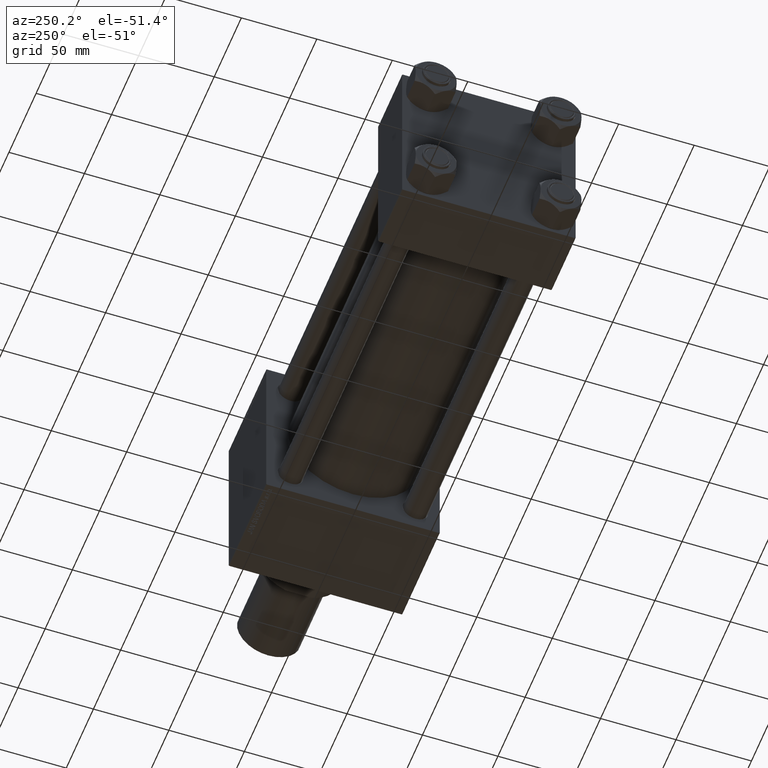
[diagram: clean part render]
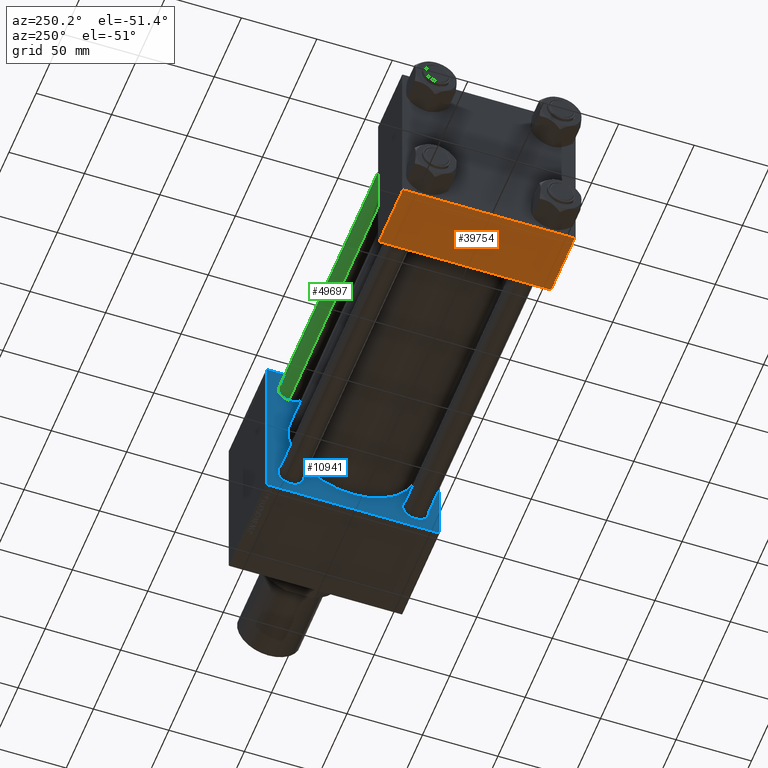
[diagram: same view with three faces highlighted in distinct colors, each labeled with its STEP entity id]
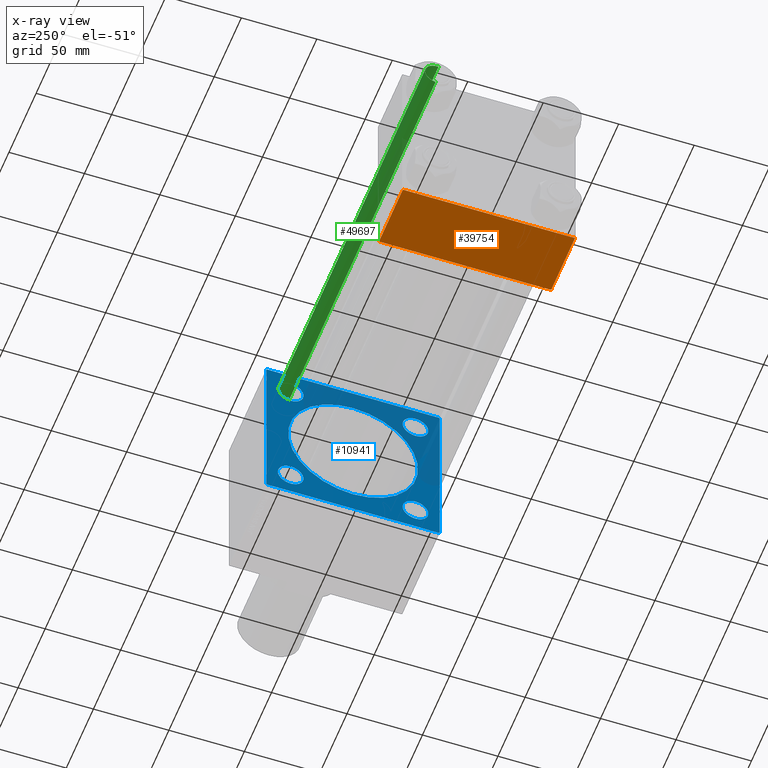
[diagram: x-ray of the same camera — body ghosted, the three highlighted faces saturated]
A machine part, auxiliary view with three faces highlighted in distinct colors.
The next image is the same camera in x-ray (body ghosted, the three faces saturated) — at least one of them is partly hidden behind the body in this view.
Their STEP definitions:

[orange] entity #39754 — the highlighted planar face has unit normal (0, 0, -1).
#2098 = VECTOR ( 'NONE', #50727, 1000.000000000000000 ) ;
#3280 = CARTESIAN_POINT ( 'NONE',  ( 0.000000000000000000, 57.49999999999999289, -57.49999999999999289 ) ) ;
#3710 = VERTEX_POINT ( 'NONE', #31891 ) ;
#6018 = DIRECTION ( 'NONE',  ( 0.000000000000000000, 1.000000000000000000, 1.206764157201257045E-16 ) ) ;
#9402 = CARTESIAN_POINT ( 'NONE',  ( 0.000000000000000000, -57.00000000000000711, -57.50000000000000711 ) ) ;
#10116 = VERTEX_POINT ( 'NONE', #47578 ) ;
#10452 = CARTESIAN_POINT ( 'NONE',  ( 44.00000000000000000, 57.49999999999999289, -57.49999999999999289 ) ) ;
#16551 = VECTOR ( 'NONE', #37942, 1000.000000000000000 ) ;
#16689 = FACE_OUTER_BOUND ( 'NONE', #35744, .T. ) ;
#17630 = LINE ( 'NONE', #46131, #27458 ) ;
#18139 = DIRECTION ( 'NONE',  ( 1.000000000000000000, 0.000000000000000000, 0.000000000000000000 ) ) ;
#18375 = EDGE_CURVE ( 'NONE', #10116, #35563, #45708, .T. ) ;
#19473 = VERTEX_POINT ( 'NONE', #27446 ) ;
#22357 = DIRECTION ( 'NONE',  ( -1.000000000000000000, 0.000000000000000000, 0.000000000000000000 ) ) ;
#27446 = CARTESIAN_POINT ( 'NONE',  ( 0.000000000000000000, 57.00000000000002132, -57.49999999999999289 ) ) ;
#27458 = VECTOR ( 'NONE', #18139, 1000.000000000000000 ) ;
#27668 = ORIENTED_EDGE ( 'NONE', *, *, #18375, .T. ) ;
#28375 = AXIS2_PLACEMENT_3D ( 'NONE', #28624, #44415, #6018 ) ;
#28624 = CARTESIAN_POINT ( 'NONE',  ( 44.00000000000000000, 57.49999999999999289, -57.49999999999999289 ) ) ;
#30224 = EDGE_CURVE ( 'NONE', #35563, #3710, #33017, .T. ) ;
#31730 = VECTOR ( 'NONE', #22357, 1000.000000000000000 ) ;
#31891 = CARTESIAN_POINT ( 'NONE',  ( 0.000000000000000000, -57.00000000000000711, -57.50000000000000711 ) ) ;
#32510 = PLANE ( 'NONE',  #28375 ) ;
#33017 = LINE ( 'NONE', #9402, #31730 ) ;
#35563 = VERTEX_POINT ( 'NONE', #46736 ) ;
#35744 = EDGE_LOOP ( 'NONE', ( #44730, #36134, #27668, #44983 ) ) ;
#36134 = ORIENTED_EDGE ( 'NONE', *, *, #36225, .T. ) ;
#36225 = EDGE_CURVE ( 'NONE', #19473, #10116, #17630, .T. ) ;
#37942 = DIRECTION ( 'NONE',  ( 0.000000000000000000, -1.000000000000000000, -1.206764157201257045E-16 ) ) ;
#38822 = LINE ( 'NONE', #3280, #2098 ) ;
#39754 = ADVANCED_FACE ( 'NONE', ( #16689 ), #32510, .T. ) ;
#44415 = DIRECTION ( 'NONE',  ( 0.000000000000000000, 1.206764157201257045E-16, -1.000000000000000000 ) ) ;
#44730 = ORIENTED_EDGE ( 'NONE', *, *, #45313, .F. ) ;
#44983 = ORIENTED_EDGE ( 'NONE', *, *, #30224, .T. ) ;
#45313 = EDGE_CURVE ( 'NONE', #19473, #3710, #38822, .T. ) ;
#45708 = LINE ( 'NONE', #10452, #16551 ) ;
#46131 = CARTESIAN_POINT ( 'NONE',  ( 44.00000000000000000, 57.00000000000002132, -57.49999999999999289 ) ) ;
#46736 = CARTESIAN_POINT ( 'NONE',  ( 44.00000000000000000, -57.00000000000000711, -57.50000000000000711 ) ) ;
#47578 = CARTESIAN_POINT ( 'NONE',  ( 44.00000000000000000, 57.00000000000002132, -57.49999999999999289 ) ) ;
#50727 = DIRECTION ( 'NONE',  ( 0.000000000000000000, -1.000000000000000000, -1.206764157201257045E-16 ) ) ;

[blue] entity #10941 — the highlighted planar face has unit normal (-1, 0, 0).
#145 = VERTEX_POINT ( 'NONE', #35163 ) ;
#237 = DIRECTION ( 'NONE',  ( 0.000000000000000000, 0.000000000000000000, -1.000000000000000000 ) ) ;
#467 = AXIS2_PLACEMENT_3D ( 'NONE', #19579, #35151, #35407 ) ;
#803 = DIRECTION ( 'NONE',  ( 0.000000000000000000, -1.000000000000000000, -1.206764157201257291E-16 ) ) ;
#907 = ORIENTED_EDGE ( 'NONE', *, *, #44522, .T. ) ;
#1393 = EDGE_CURVE ( 'NONE', #9197, #38888, #12001, .T. ) ;
#1489 = VERTEX_POINT ( 'NONE', #20803 ) ;
#1846 = LINE ( 'NONE', #17673, #1873 ) ;
#1873 = VECTOR ( 'NONE', #24960, 1000.000000000000000 ) ;
#2309 = DIRECTION ( 'NONE',  ( 1.000000000000000000, -0.000000000000000000, 0.000000000000000000 ) ) ;
#2735 = VERTEX_POINT ( 'NONE', #47397 ) ;
#3353 = VERTEX_POINT ( 'NONE', #42329 ) ;
#3479 = VECTOR ( 'NONE', #41892, 1000.000000000000114 ) ;
#3722 = EDGE_CURVE ( 'NONE', #1489, #50781, #44529, .T. ) ;
#4226 = EDGE_LOOP ( 'NONE', ( #907, #44579 ) ) ;
#4785 = VERTEX_POINT ( 'NONE', #33879 ) ;
#4809 = CARTESIAN_POINT ( 'NONE',  ( 250.0000000000000000, 41.34999999999999432, -41.35000000000000142 ) ) ;
#4894 = PLANE ( 'NONE',  #18890 ) ;
#5640 = CARTESIAN_POINT ( 'NONE',  ( 250.0000000000000000, 57.50000000000000000, -56.99999999999991473 ) ) ;
#5723 = CARTESIAN_POINT ( 'NONE',  ( 250.0000000000000000, 57.50000000000000000, 57.50000000000000711 ) ) ;
#5742 = ORIENTED_EDGE ( 'NONE', *, *, #48316, .T. ) ;
#6039 = CARTESIAN_POINT ( 'NONE',  ( 250.0000000000000000, -2.602085213965210642E-15, 0.000000000000000000 ) ) ;
#6301 = DIRECTION ( 'NONE',  ( 0.000000000000000000, 0.000000000000000000, -1.000000000000000000 ) ) ;
#7426 = EDGE_LOOP ( 'NONE', ( #17425, #46167 ) ) ;
#8686 = CIRCLE ( 'NONE', #30260, 43.00000000000000000 ) ;
#9197 = VERTEX_POINT ( 'NONE', #43441 ) ;
#9743 = LINE ( 'NONE', #41383, #3479 ) ;
#9775 = VERTEX_POINT ( 'NONE', #13799 ) ;
#10408 = VERTEX_POINT ( 'NONE', #20821 ) ;
#10941 = ADVANCED_FACE ( 'NONE', ( #37256, #21179, #45026, #17550, #33376, #36545 ), #4894, .T. ) ;
#11238 = DIRECTION ( 'NONE',  ( 0.000000000000000000, -0.7071067811865525687, 0.7071067811865425767 ) ) ;
#11537 = ORIENTED_EDGE ( 'NONE', *, *, #3722, .T. ) ;
#11667 = CARTESIAN_POINT ( 'NONE',  ( 250.0000000000000000, -2.602085213965210642E-15, 0.000000000000000000 ) ) ;
#12001 = LINE ( 'NONE', #23682, #14673 ) ;
#12104 = DIRECTION ( 'NONE',  ( 0.000000000000000000, 0.7071067811865474617, -0.7071067811865474617 ) ) ;
#12260 = AXIS2_PLACEMENT_3D ( 'NONE', #12676, #36020, #28246 ) ;
#12351 = DIRECTION ( 'NONE',  ( 0.000000000000000000, 0.000000000000000000, 1.000000000000000000 ) ) ;
#12676 = CARTESIAN_POINT ( 'NONE',  ( 250.0000000000000000, -41.34999999999998721, 41.35000000000000853 ) ) ;
#13212 = DIRECTION ( 'NONE',  ( -1.000000000000000000, 0.000000000000000000, -0.000000000000000000 ) ) ;
#13438 = CIRCLE ( 'NONE', #34989, 8.500000000000007105 ) ;
#13560 = DIRECTION ( 'NONE',  ( 0.000000000000000000, 0.000000000000000000, -1.000000000000000000 ) ) ;
#13646 = EDGE_CURVE ( 'NONE', #32529, #38888, #26010, .T. ) ;
#13799 = CARTESIAN_POINT ( 'NONE',  ( 250.0000000000000000, 41.34999999999999432, 49.85000000000001563 ) ) ;
#14222 = AXIS2_PLACEMENT_3D ( 'NONE', #41728, #2309, #25672 ) ;
#14288 = CIRCLE ( 'NONE', #27562, 8.500000000000007105 ) ;
#14673 = VECTOR ( 'NONE', #11238, 999.9999999999998863 ) ;
#16254 = LINE ( 'NONE', #51250, #29977 ) ;
#16703 = CIRCLE ( 'NONE', #14222, 8.500000000000007105 ) ;
#16820 = VERTEX_POINT ( 'NONE', #48234 ) ;
#17425 = ORIENTED_EDGE ( 'NONE', *, *, #37050, .T. ) ;
#17550 = FACE_BOUND ( 'NONE', #4226, .T. ) ;
#17673 = CARTESIAN_POINT ( 'NONE',  ( 250.0000000000000000, 57.50000000000000000, 57.50000000000000711 ) ) ;
#18545 = CARTESIAN_POINT ( 'NONE',  ( 250.0000000000000000, 57.00000000000000000, 57.50000000000000711 ) ) ;
#18890 = AXIS2_PLACEMENT_3D ( 'NONE', #37060, #13212, #29043 ) ;
#19579 = CARTESIAN_POINT ( 'NONE',  ( 250.0000000000000000, -41.34999999999998721, 41.35000000000000853 ) ) ;
#19930 = DIRECTION ( 'NONE',  ( 1.000000000000000000, -0.000000000000000000, 0.000000000000000000 ) ) ;
#19939 = DIRECTION ( 'NONE',  ( 1.000000000000000000, 0.000000000000000000, 0.000000000000000000 ) ) ;
#20004 = DIRECTION ( 'NONE',  ( 0.000000000000000000, 0.000000000000000000, 1.000000000000000000 ) ) ;
#20369 = EDGE_LOOP ( 'NONE', ( #20822, #34930 ) ) ;
#20375 = DIRECTION ( 'NONE',  ( 1.000000000000000000, -0.000000000000000000, 0.000000000000000000 ) ) ;
#20803 = CARTESIAN_POINT ( 'NONE',  ( 250.0000000000000000, -41.34999999999998721, 32.85000000000000142 ) ) ;
#20821 = CARTESIAN_POINT ( 'NONE',  ( 250.0000000000000000, 56.99999999999994316, -57.49999999999996447 ) ) ;
#20822 = ORIENTED_EDGE ( 'NONE', *, *, #48739, .T. ) ;
#21179 = FACE_BOUND ( 'NONE', #7426, .T. ) ;
#21639 = EDGE_CURVE ( 'NONE', #25100, #4785, #25466, .T. ) ;
#21862 = DIRECTION ( 'NONE',  ( 1.000000000000000000, 0.000000000000000000, 0.000000000000000000 ) ) ;
#22149 = ORIENTED_EDGE ( 'NONE', *, *, #38703, .T. ) ;
#22701 = EDGE_CURVE ( 'NONE', #23893, #9775, #16703, .T. ) ;
#23316 = CARTESIAN_POINT ( 'NONE',  ( 250.0000000000000000, -57.49999999999999289, -56.99999999999997868 ) ) ;
#23499 = VERTEX_POINT ( 'NONE', #45873 ) ;
#23682 = CARTESIAN_POINT ( 'NONE',  ( 250.0000000000000000, -57.24999999999959499, -57.25000000000039080 ) ) ;
#23745 = DIRECTION ( 'NONE',  ( 0.000000000000000000, 0.000000000000000000, 1.000000000000000000 ) ) ;
#23893 = VERTEX_POINT ( 'NONE', #38552 ) ;
#24267 = ORIENTED_EDGE ( 'NONE', *, *, #50095, .T. ) ;
#24362 = VERTEX_POINT ( 'NONE', #42008 ) ;
#24587 = DIRECTION ( 'NONE',  ( 0.000000000000000000, 0.000000000000000000, 1.000000000000000000 ) ) ;
#24845 = EDGE_CURVE ( 'NONE', #145, #16820, #13438, .T. ) ;
#24960 = DIRECTION ( 'NONE',  ( 0.000000000000000000, 0.000000000000000000, -1.000000000000000000 ) ) ;
#25010 = EDGE_LOOP ( 'NONE', ( #24267, #11537 ) ) ;
#25100 = VERTEX_POINT ( 'NONE', #18545 ) ;
#25466 = LINE ( 'NONE', #5723, #43956 ) ;
#25672 = DIRECTION ( 'NONE',  ( 0.000000000000000000, 0.000000000000000000, 1.000000000000000000 ) ) ;
#26010 = LINE ( 'NONE', #33785, #46968 ) ;
#26083 = CIRCLE ( 'NONE', #33549, 8.500000000000007105 ) ;
#26189 = CIRCLE ( 'NONE', #45106, 43.00000000000000000 ) ;
#26229 = EDGE_CURVE ( 'NONE', #2735, #38240, #1846, .T. ) ;
#26470 = ORIENTED_EDGE ( 'NONE', *, *, #21639, .F. ) ;
#26548 = EDGE_CURVE ( 'NONE', #31741, #3353, #47319, .T. ) ;
#27545 = ORIENTED_EDGE ( 'NONE', *, *, #24845, .T. ) ;
#27562 = AXIS2_PLACEMENT_3D ( 'NONE', #29248, #44534, #24587 ) ;
#28246 = DIRECTION ( 'NONE',  ( 0.000000000000000000, 0.000000000000000000, 1.000000000000000000 ) ) ;
#28826 = CARTESIAN_POINT ( 'NONE',  ( 250.0000000000000000, 57.50000000000000000, -57.49999999999996447 ) ) ;
#29043 = DIRECTION ( 'NONE',  ( -0.000000000000000000, 0.000000000000000000, 1.000000000000000000 ) ) ;
#29248 = CARTESIAN_POINT ( 'NONE',  ( 250.0000000000000000, 41.34999999999999432, -41.35000000000000142 ) ) ;
#29755 = EDGE_CURVE ( 'NONE', #16820, #145, #14288, .T. ) ;
#29977 = VECTOR ( 'NONE', #12104, 1000.000000000000114 ) ;
#30260 = AXIS2_PLACEMENT_3D ( 'NONE', #11667, #19939, #237 ) ;
#30786 = CIRCLE ( 'NONE', #50633, 8.500000000000007105 ) ;
#31293 = DIRECTION ( 'NONE',  ( 1.000000000000000000, -0.000000000000000000, 0.000000000000000000 ) ) ;
#31741 = VERTEX_POINT ( 'NONE', #47718 ) ;
#31794 = CARTESIAN_POINT ( 'NONE',  ( 250.0000000000000000, -41.34999999999998721, -41.35000000000000853 ) ) ;
#32529 = VERTEX_POINT ( 'NONE', #34625 ) ;
#33376 = FACE_BOUND ( 'NONE', #20369, .T. ) ;
#33549 = AXIS2_PLACEMENT_3D ( 'NONE', #43105, #39479, #20004 ) ;
#33785 = CARTESIAN_POINT ( 'NONE',  ( 250.0000000000000000, -57.49999999999999289, 57.49999999999999289 ) ) ;
#33879 = CARTESIAN_POINT ( 'NONE',  ( 250.0000000000000000, -57.00000000000004263, 57.49999999999999289 ) ) ;
#34269 = EDGE_CURVE ( 'NONE', #25100, #2735, #16254, .T. ) ;
#34625 = CARTESIAN_POINT ( 'NONE',  ( 250.0000000000000000, -57.49999999999999289, 57.00000000000004974 ) ) ;
#34930 = ORIENTED_EDGE ( 'NONE', *, *, #47630, .T. ) ;
#34989 = AXIS2_PLACEMENT_3D ( 'NONE', #4809, #20375, #12351 ) ;
#35115 = ORIENTED_EDGE ( 'NONE', *, *, #29755, .T. ) ;
#35151 = DIRECTION ( 'NONE',  ( 1.000000000000000000, -0.000000000000000000, 0.000000000000000000 ) ) ;
#35163 = CARTESIAN_POINT ( 'NONE',  ( 250.0000000000000000, 41.34999999999999432, -49.85000000000001563 ) ) ;
#35407 = DIRECTION ( 'NONE',  ( 0.000000000000000000, 0.000000000000000000, 1.000000000000000000 ) ) ;
#36020 = DIRECTION ( 'NONE',  ( 1.000000000000000000, -0.000000000000000000, 0.000000000000000000 ) ) ;
#36545 = FACE_OUTER_BOUND ( 'NONE', #40392, .T. ) ;
#37050 = EDGE_CURVE ( 'NONE', #9775, #23893, #30786, .T. ) ;
#37060 = CARTESIAN_POINT ( 'NONE',  ( 250.0000000000000000, 0.000000000000000000, 0.000000000000000000 ) ) ;
#37256 = FACE_BOUND ( 'NONE', #25010, .T. ) ;
#37371 = DIRECTION ( 'NONE',  ( 0.000000000000000000, -1.000000000000000000, -1.206764157201257291E-16 ) ) ;
#38240 = VERTEX_POINT ( 'NONE', #5640 ) ;
#38552 = CARTESIAN_POINT ( 'NONE',  ( 250.0000000000000000, 41.34999999999999432, 32.84999999999999432 ) ) ;
#38703 = EDGE_CURVE ( 'NONE', #38240, #10408, #9743, .T. ) ;
#38888 = VERTEX_POINT ( 'NONE', #23316 ) ;
#38892 = CARTESIAN_POINT ( 'NONE',  ( 250.0000000000000000, 41.34999999999999432, 41.35000000000000142 ) ) ;
#39097 = AXIS2_PLACEMENT_3D ( 'NONE', #31794, #31293, #23745 ) ;
#39199 = ORIENTED_EDGE ( 'NONE', *, *, #13646, .F. ) ;
#39479 = DIRECTION ( 'NONE',  ( 1.000000000000000000, -0.000000000000000000, 0.000000000000000000 ) ) ;
#40282 = CARTESIAN_POINT ( 'NONE',  ( 250.0000000000000000, -57.24999999999962341, 57.25000000000041211 ) ) ;
#40392 = EDGE_LOOP ( 'NONE', ( #49319, #43694, #39199, #5742, #26470, #48490, #46904, #22149 ) ) ;
#41383 = CARTESIAN_POINT ( 'NONE',  ( 250.0000000000000000, 57.24999999999995737, -57.24999999999995737 ) ) ;
#41728 = CARTESIAN_POINT ( 'NONE',  ( 250.0000000000000000, 41.34999999999999432, 41.35000000000000142 ) ) ;
#41892 = DIRECTION ( 'NONE',  ( -0.000000000000000000, -0.7071067811865474617, -0.7071067811865474617 ) ) ;
#42008 = CARTESIAN_POINT ( 'NONE',  ( 250.0000000000000000, 2.663896022368408223E-15, -43.00000000000000000 ) ) ;
#42329 = CARTESIAN_POINT ( 'NONE',  ( 250.0000000000000000, -41.34999999999998721, -32.85000000000000142 ) ) ;
#43105 = CARTESIAN_POINT ( 'NONE',  ( 250.0000000000000000, -41.34999999999998721, -41.35000000000000853 ) ) ;
#43262 = EDGE_LOOP ( 'NONE', ( #35115, #27545 ) ) ;
#43441 = CARTESIAN_POINT ( 'NONE',  ( 250.0000000000000000, -56.99999999999998579, -57.49999999999997868 ) ) ;
#43533 = DIRECTION ( 'NONE',  ( 0.000000000000000000, 0.000000000000000000, 1.000000000000000000 ) ) ;
#43694 = ORIENTED_EDGE ( 'NONE', *, *, #1393, .T. ) ;
#43956 = VECTOR ( 'NONE', #37371, 1000.000000000000000 ) ;
#44164 = LINE ( 'NONE', #40282, #46033 ) ;
#44522 = EDGE_CURVE ( 'NONE', #3353, #31741, #26083, .T. ) ;
#44529 = CIRCLE ( 'NONE', #12260, 8.500000000000007105 ) ;
#44534 = DIRECTION ( 'NONE',  ( 1.000000000000000000, -0.000000000000000000, 0.000000000000000000 ) ) ;
#44579 = ORIENTED_EDGE ( 'NONE', *, *, #26548, .T. ) ;
#44620 = LINE ( 'NONE', #28826, #46031 ) ;
#45026 = FACE_BOUND ( 'NONE', #43262, .T. ) ;
#45106 = AXIS2_PLACEMENT_3D ( 'NONE', #6039, #21862, #6301 ) ;
#45184 = CIRCLE ( 'NONE', #467, 8.500000000000007105 ) ;
#45873 = CARTESIAN_POINT ( 'NONE',  ( 250.0000000000000000, -2.602085213965210642E-15, 43.00000000000000000 ) ) ;
#46031 = VECTOR ( 'NONE', #803, 1000.000000000000000 ) ;
#46033 = VECTOR ( 'NONE', #50475, 1000.000000000000000 ) ;
#46167 = ORIENTED_EDGE ( 'NONE', *, *, #22701, .T. ) ;
#46904 = ORIENTED_EDGE ( 'NONE', *, *, #26229, .T. ) ;
#46968 = VECTOR ( 'NONE', #13560, 1000.000000000000000 ) ;
#47088 = CARTESIAN_POINT ( 'NONE',  ( 250.0000000000000000, -41.34999999999998721, 49.85000000000002274 ) ) ;
#47319 = CIRCLE ( 'NONE', #39097, 8.500000000000007105 ) ;
#47397 = CARTESIAN_POINT ( 'NONE',  ( 250.0000000000000000, 57.50000000000000000, 57.00000000000000711 ) ) ;
#47630 = EDGE_CURVE ( 'NONE', #24362, #23499, #26189, .T. ) ;
#47718 = CARTESIAN_POINT ( 'NONE',  ( 250.0000000000000000, -41.34999999999998721, -49.85000000000002274 ) ) ;
#48234 = CARTESIAN_POINT ( 'NONE',  ( 250.0000000000000000, 41.34999999999999432, -32.84999999999999432 ) ) ;
#48316 = EDGE_CURVE ( 'NONE', #32529, #4785, #44164, .T. ) ;
#48490 = ORIENTED_EDGE ( 'NONE', *, *, #34269, .T. ) ;
#48739 = EDGE_CURVE ( 'NONE', #23499, #24362, #8686, .T. ) ;
#49319 = ORIENTED_EDGE ( 'NONE', *, *, #51184, .T. ) ;
#50095 = EDGE_CURVE ( 'NONE', #50781, #1489, #45184, .T. ) ;
#50475 = DIRECTION ( 'NONE',  ( -0.000000000000000000, 0.7071067811865524577, 0.7071067811865426878 ) ) ;
#50633 = AXIS2_PLACEMENT_3D ( 'NONE', #38892, #19930, #43533 ) ;
#50781 = VERTEX_POINT ( 'NONE', #47088 ) ;
#51184 = EDGE_CURVE ( 'NONE', #10408, #9197, #44620, .T. ) ;
#51250 = CARTESIAN_POINT ( 'NONE',  ( 250.0000000000000000, 57.25000000000000711, 57.25000000000000711 ) ) ;

[green] entity #49697 — the highlighted cylindrical surface (edge-blend (fillet) strip) has radius 8 mm, axis along (-1, 0, 0).
#1197 = CARTESIAN_POINT ( 'NONE',  ( 8.000000000000000000, 9.797174393178825657E-16, 282.5000000000000000 ) ) ;
#2486 = DIRECTION ( 'NONE',  ( -0.000000000000000000, -0.000000000000000000, 1.000000000000000000 ) ) ;
#2824 = ORIENTED_EDGE ( 'NONE', *, *, #25775, .T. ) ;
#4558 = ORIENTED_EDGE ( 'NONE', *, *, #47287, .T. ) ;
#5448 = ORIENTED_EDGE ( 'NONE', *, *, #29166, .F. ) ;
#5599 = DIRECTION ( 'NONE',  ( 1.000000000000000000, 0.000000000000000000, 0.000000000000000000 ) ) ;
#7834 = DIRECTION ( 'NONE',  ( 0.000000000000000000, 0.000000000000000000, -1.000000000000000000 ) ) ;
#7922 = VECTOR ( 'NONE', #49657, 1000.000000000000000 ) ;
#8787 = CYLINDRICAL_SURFACE ( 'NONE', #37713, 8.000000000000000000 ) ;
#12232 = DIRECTION ( 'NONE',  ( 1.000000000000000000, 0.000000000000000000, 0.000000000000000000 ) ) ;
#12943 = CARTESIAN_POINT ( 'NONE',  ( 0.000000000000000000, 0.000000000000000000, 283.0000000000000000 ) ) ;
#17168 = CARTESIAN_POINT ( 'NONE',  ( -8.000000000000000000, 0.000000000000000000, 282.5000000000000000 ) ) ;
#17798 = CIRCLE ( 'NONE', #20304, 8.000000000000000000 ) ;
#20304 = AXIS2_PLACEMENT_3D ( 'NONE', #39474, #7834, #12232 ) ;
#21224 = DIRECTION ( 'NONE',  ( -0.000000000000000000, -0.000000000000000000, -1.000000000000000000 ) ) ;
#21571 = VERTEX_POINT ( 'NONE', #17168 ) ;
#22665 = CARTESIAN_POINT ( 'NONE',  ( -8.000000000000000000, 0.000000000000000000, 283.0000000000000000 ) ) ;
#25362 = VERTEX_POINT ( 'NONE', #41311 ) ;
#25775 = EDGE_CURVE ( 'NONE', #29640, #25362, #29224, .T. ) ;
#27974 = CARTESIAN_POINT ( 'NONE',  ( 8.000000000000000000, 9.797174393178825657E-16, 0.5000000000000004441 ) ) ;
#29166 = EDGE_CURVE ( 'NONE', #21571, #25362, #37457, .T. ) ;
#29224 = CIRCLE ( 'NONE', #30778, 8.000000000000000000 ) ;
#29640 = VERTEX_POINT ( 'NONE', #27974 ) ;
#29732 = LINE ( 'NONE', #45262, #7922 ) ;
#29745 = CARTESIAN_POINT ( 'NONE',  ( 0.000000000000000000, 0.000000000000000000, 0.5000000000000004441 ) ) ;
#30778 = AXIS2_PLACEMENT_3D ( 'NONE', #29745, #2486, #5599 ) ;
#37046 = DIRECTION ( 'NONE',  ( -1.000000000000000000, 0.000000000000000000, 0.000000000000000000 ) ) ;
#37141 = EDGE_LOOP ( 'NONE', ( #43322, #4558, #2824, #5448 ) ) ;
#37457 = LINE ( 'NONE', #22665, #48245 ) ;
#37713 = AXIS2_PLACEMENT_3D ( 'NONE', #12943, #21224, #37046 ) ;
#39474 = CARTESIAN_POINT ( 'NONE',  ( 0.000000000000000000, 0.000000000000000000, 282.5000000000000000 ) ) ;
#40939 = FACE_OUTER_BOUND ( 'NONE', #37141, .T. ) ;
#41311 = CARTESIAN_POINT ( 'NONE',  ( -8.000000000000000000, 0.000000000000000000, 0.5000000000000004441 ) ) ;
#41605 = DIRECTION ( 'NONE',  ( -0.000000000000000000, -0.000000000000000000, -1.000000000000000000 ) ) ;
#43322 = ORIENTED_EDGE ( 'NONE', *, *, #48512, .T. ) ;
#45262 = CARTESIAN_POINT ( 'NONE',  ( 8.000000000000000000, 9.797174393178825657E-16, 283.0000000000000000 ) ) ;
#46275 = VERTEX_POINT ( 'NONE', #1197 ) ;
#47287 = EDGE_CURVE ( 'NONE', #46275, #29640, #29732, .T. ) ;
#48245 = VECTOR ( 'NONE', #41605, 1000.000000000000000 ) ;
#48512 = EDGE_CURVE ( 'NONE', #21571, #46275, #17798, .T. ) ;
#49657 = DIRECTION ( 'NONE',  ( -0.000000000000000000, -0.000000000000000000, -1.000000000000000000 ) ) ;
#49697 = ADVANCED_FACE ( 'NONE', ( #40939 ), #8787, .T. ) ;